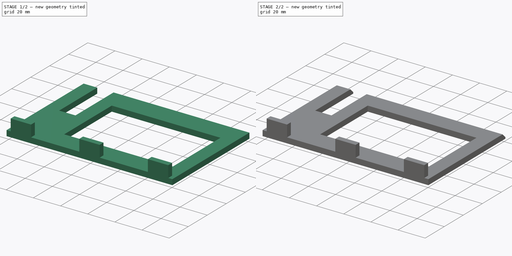
[diagram: build sequence overview — one tinted view per stage of 2, left to right]
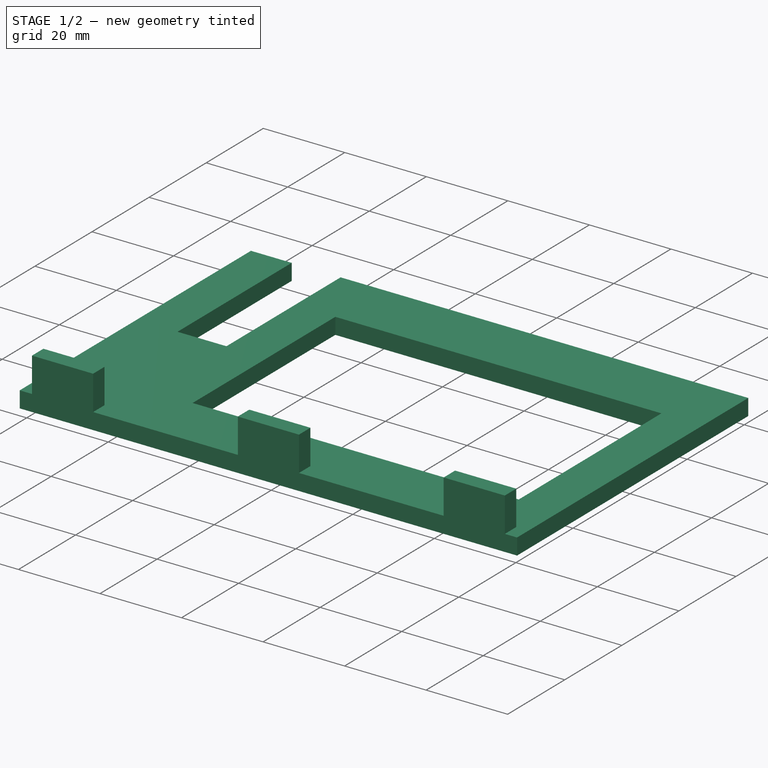
[diagram: stage 1 of 2 — iso view after this stage's code; geometry added in this stage tinted green]
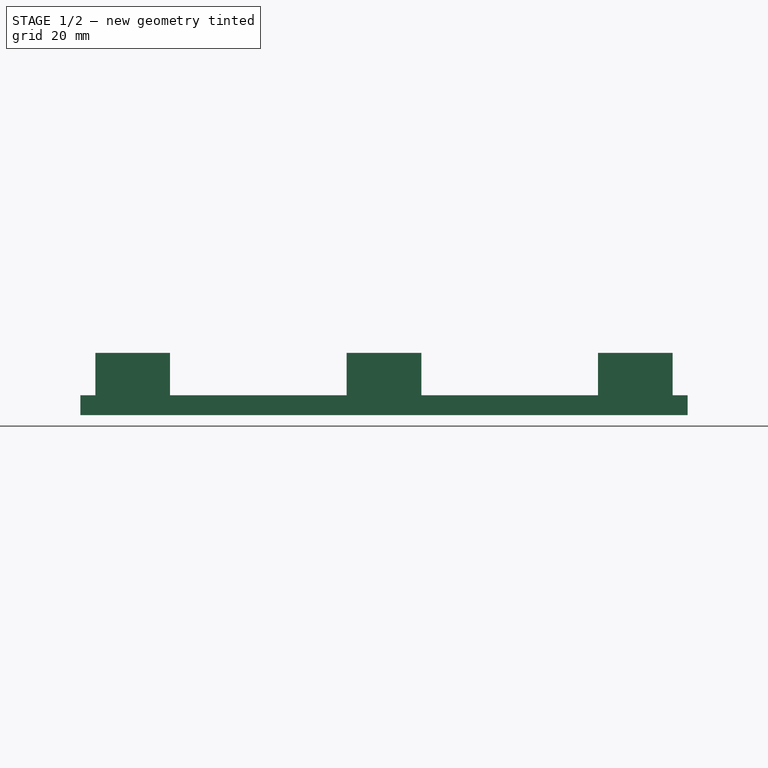
[diagram: stage 1 of 2 — front view after this stage's code; geometry added in this stage tinted green]
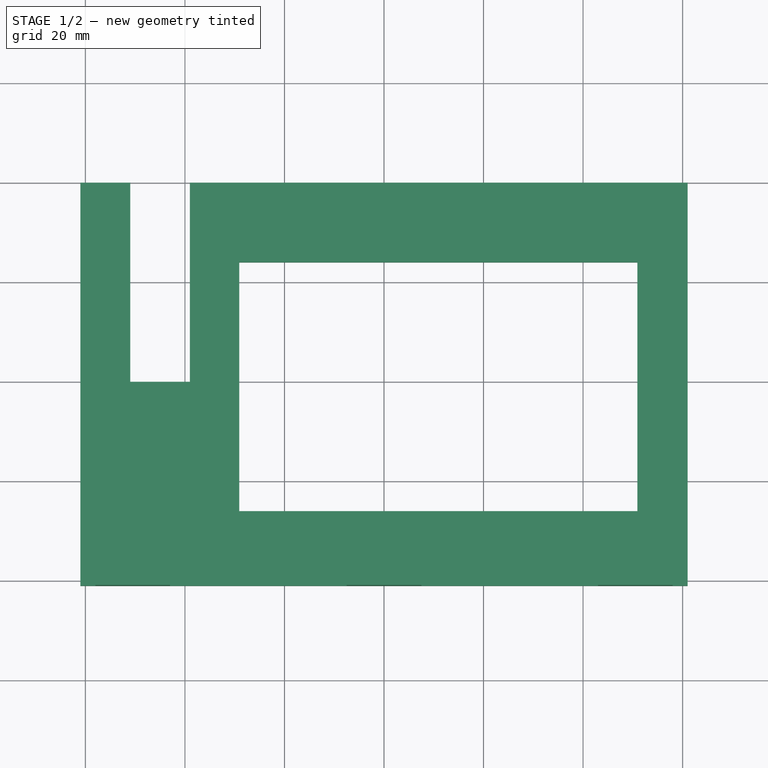
[diagram: stage 1 of 2 — top view after this stage's code; geometry added in this stage tinted green]
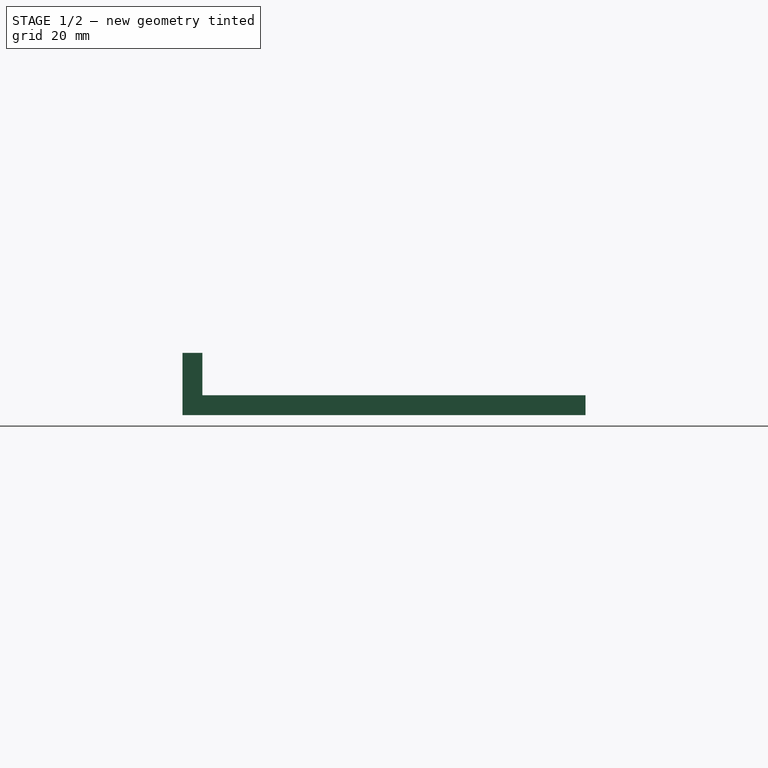
[diagram: stage 1 of 2 — right view after this stage's code; geometry added in this stage tinted green]
FCSTD DOCUMENT  (FreeCAD 0.15R4671 (Git))
Label: electronics_support
License: All rights reserved
LicenseURL: http://en.wikipedia.org/wiki/All_rights_reserved
objects: Sketcher::SketchObject×2, PartDesign::Pad×2, Part::MultiFuse×1, Part::Chamfer×1
note: 8 computed .brp shape members not serialized (recipe doc carries the construction recipe); baked Part::Feature solids carry a one-line shape summary decoded from their .brp

FEATURE [Sketcher::SketchObject] Sketch
  sketch-geometry (12):
    g0: LineSegment StartX=61 StartY=40 StartZ=0 EndX=61 EndY=-41 EndZ=0
    g1: LineSegment StartX=61 StartY=-41 StartZ=0 EndX=-61 EndY=-41 EndZ=0
    g2: LineSegment StartX=-61 StartY=-41 StartZ=0 EndX=-61 EndY=40 EndZ=0
    g3: LineSegment StartX=-51 StartY=0 StartZ=0 EndX=-39 EndY=0 EndZ=0
    g4: LineSegment StartX=-39 StartY=0 StartZ=0 EndX=-39 EndY=40 EndZ=0
    g5: LineSegment StartX=-51 StartY=40 StartZ=0 EndX=-51 EndY=0 EndZ=0
    g6: LineSegment StartX=-61 StartY=40 StartZ=0 EndX=-51 EndY=40 EndZ=0
    g7: LineSegment StartX=-39 StartY=40 StartZ=0 EndX=61 EndY=40 EndZ=0
    g8: LineSegment StartX=-29.0957 StartY=24 StartZ=0 EndX=50.9043 EndY=24 EndZ=0
    g9: LineSegment StartX=50.9043 StartY=24 StartZ=0 EndX=50.9043 EndY=-26 EndZ=0
    g10: LineSegment StartX=50.9043 StartY=-26 StartZ=0 EndX=-29.0957 EndY=-26 EndZ=0
    g11: LineSegment StartX=-29.0957 StartY=-26 StartZ=0 EndX=-29.0957 EndY=24 EndZ=0
  constraints (34):
    c: Coincident(g0,g1)
    c: Coincident(g1,g2)
    c: Horizontal(g1)
    c: Vertical(g0)
    c: Vertical(g2)
    c: DistanceY(g-1,g0) = 40
    c: DistanceY(g0) = -81
    c: Symmetric(g2,g0,g-2)
    c: DistanceX(g1) = -122
    c: Coincident(g3,g4)
    c: Coincident(g5,g3)
    c: Horizontal(g3)
    c: Vertical(g4)
    c: Vertical(g5)
    c: Coincident(g6,g2)
    c: Coincident(g6,g5)
    c: Horizontal(g6)
    c: Coincident(g7,g4)
    c: Coincident(g7,g0)
    c: Horizontal(g7)
    c: Coincident(g8,g9)
    c: Coincident(g9,g10)
    c: Coincident(g10,g11)
    c: Coincident(g11,g8)
    c: Horizontal(g8)
    c: Horizontal(g10)
    c: Vertical(g9)
    c: Vertical(g11)
    c: DistanceY(g5) = -40
    c: DistanceX(g3) = 12
    c: DistanceX(g10) = -80
    c: DistanceY(g9,g0) = -15
    c: DistanceY(g11) = 50
    c: DistanceX(g6) = 10
FEATURE [PartDesign::Pad] Pad
  Length = 4
  Length2 = 100
  Sketch = -> Sketch
  Type = 0
FEATURE [Sketcher::SketchObject] Sketch001
  Placement = pos=(0,0,0.5) rot=(0,0,1;0rad)
  sketch-geometry (12):
    g0: LineSegment StartX=-58 StartY=-37 StartZ=0 EndX=-43 EndY=-37 EndZ=0
    g1: LineSegment StartX=-43 StartY=-37 StartZ=0 EndX=-43 EndY=-41 EndZ=0
    g2: LineSegment StartX=-43 StartY=-41 StartZ=0 EndX=-58 EndY=-41 EndZ=0
    g3: LineSegment StartX=-58 StartY=-41 StartZ=0 EndX=-58 EndY=-37 EndZ=0
    g4: LineSegment StartX=58 StartY=-37 StartZ=0 EndX=43 EndY=-37 EndZ=0
    g5: LineSegment StartX=43 StartY=-37 StartZ=0 EndX=43 EndY=-41 EndZ=0
    g6: LineSegment StartX=43 StartY=-41 StartZ=0 EndX=58 EndY=-41 EndZ=0
    g7: LineSegment StartX=58 StartY=-41 StartZ=0 EndX=58 EndY=-37 EndZ=0
    g8: LineSegment StartX=-7.5 StartY=-37 StartZ=0 EndX=7.5 EndY=-37 EndZ=0
    g9: LineSegment StartX=7.5 StartY=-37 StartZ=0 EndX=7.5 EndY=-41 EndZ=0
    g10: LineSegment StartX=7.5 StartY=-41 StartZ=0 EndX=-7.5 EndY=-41 EndZ=0
    g11: LineSegment StartX=-7.5 StartY=-41 StartZ=0 EndX=-7.5 EndY=-37 EndZ=0
  constraints (36):
    c: Coincident(g0,g1)
    c: Coincident(g1,g2)
    c: Coincident(g2,g3)
    c: Coincident(g3,g0)
    c: Horizontal(g0)
    c: Horizontal(g2)
    c: Vertical(g1)
    c: Vertical(g3)
    c: Coincident(g4,g5)
    c: Coincident(g5,g6)
    c: Coincident(g6,g7)
    c: Coincident(g7,g4)
    c: Horizontal(g4)
    c: Horizontal(g6)
    c: Vertical(g5)
    c: Vertical(g7)
    c: DistanceY(g5) = -4
    c: DistanceY(g1) = -4
    c: DistanceY(g-1,g1) = -41
    c: DistanceX(g-1,g0) = -58
    c: DistanceX(g-1,g4) = 58
    c: DistanceX(g0) = 15
    c: DistanceX(g4) = -15
    c: Coincident(g8,g9)
    c: Coincident(g9,g10)
    c: Coincident(g10,g11)
    c: Coincident(g11,g8)
    c: Horizontal(g8)
    c: Horizontal(g10)
    c: Vertical(g9)
    c: Vertical(g11)
    c: Symmetric(g8,g8,g-2)
    c: DistanceX(g8) = 15
    c: DistanceY(g11) = 4
    c: DistanceY(g-1,g9) = -41
    c: DistanceY(g-1,g6) = -41
FEATURE [PartDesign::Pad] Pad001
  Length = 12
  Length2 = 100
  Placement = pos=(0,0,0.5) rot=(0,0,1;0rad)
  Sketch = -> Sketch001
  Type = 0
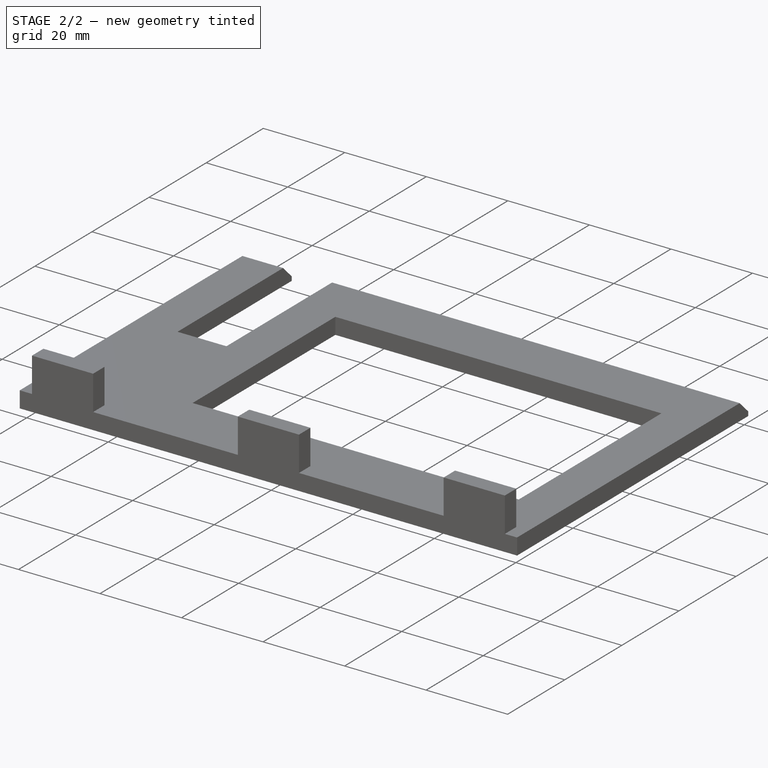
[diagram: stage 2 of 2 — iso view after this stage's code; geometry added in this stage tinted green]
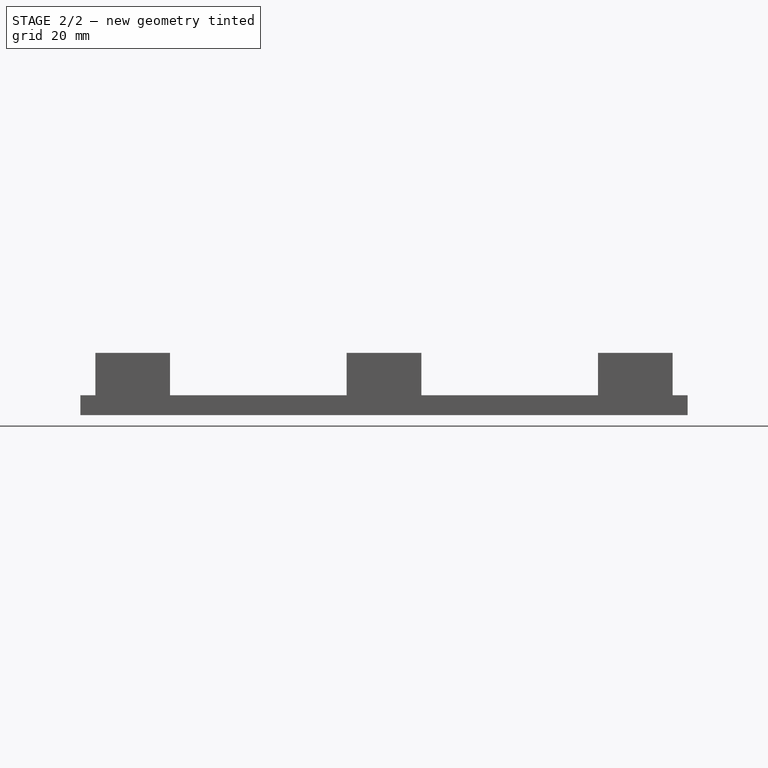
[diagram: stage 2 of 2 — front view after this stage's code; geometry added in this stage tinted green]
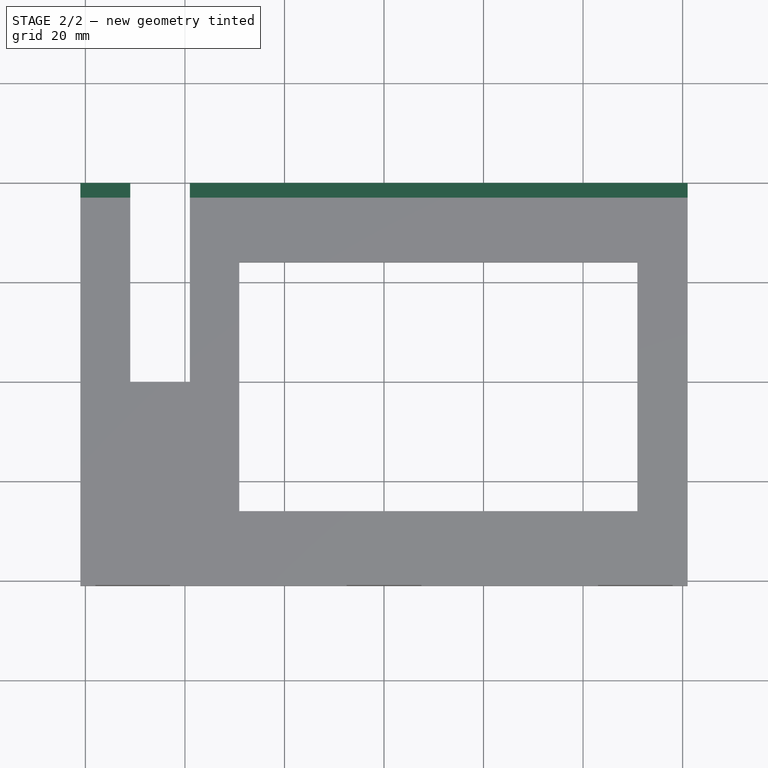
[diagram: stage 2 of 2 — top view after this stage's code; geometry added in this stage tinted green]
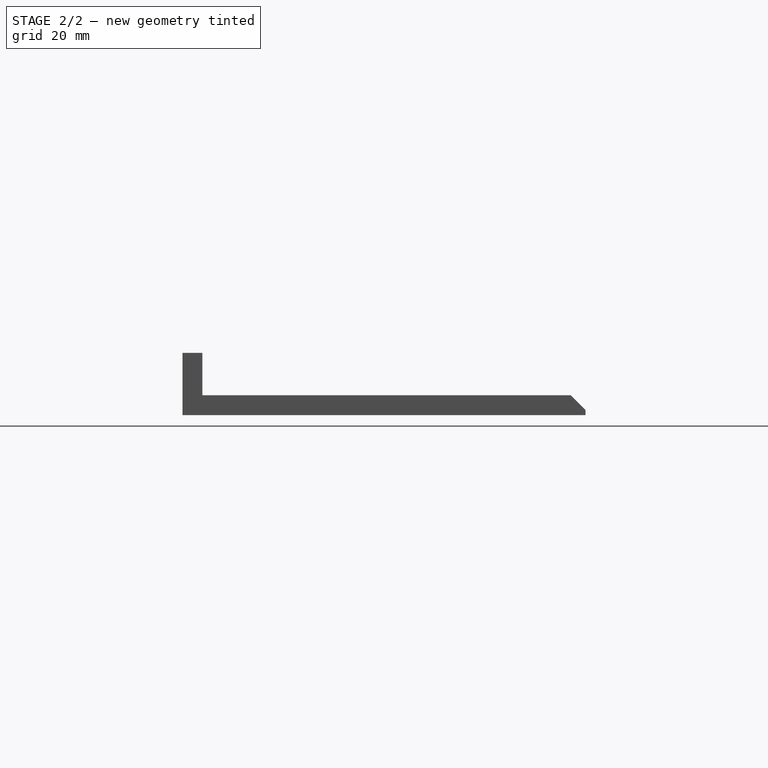
[diagram: stage 2 of 2 — right view after this stage's code; geometry added in this stage tinted green]
FEATURE [Part::MultiFuse] Fusion
  Shapes = -> [Pad,Pad001]
FEATURE [Part::Chamfer] Chamfer
  Base = -> Fusion
  Edges = 2 edges r=3: [Edge7,Edge35]
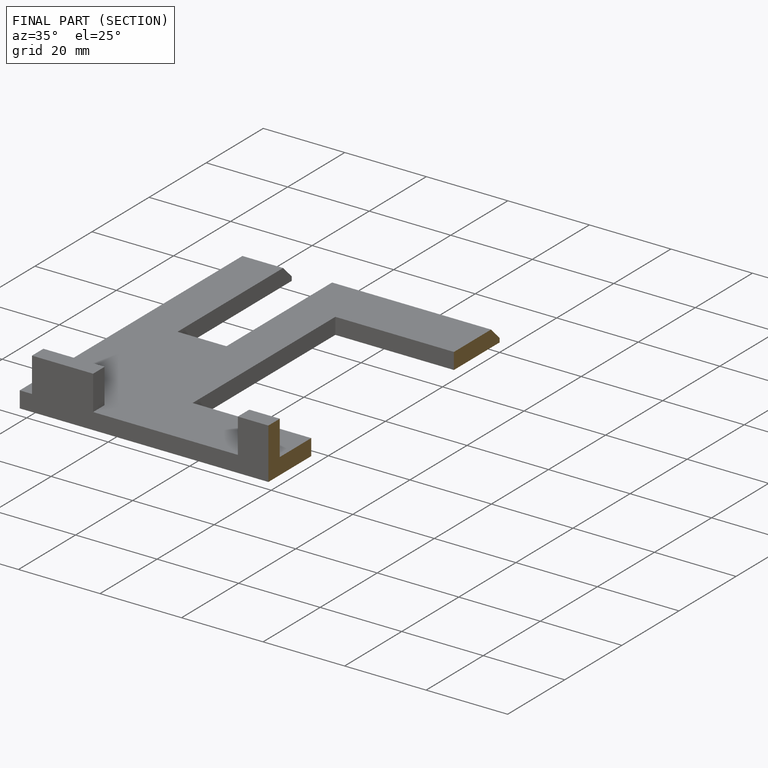
[diagram: finished part — half-section view (interior)]
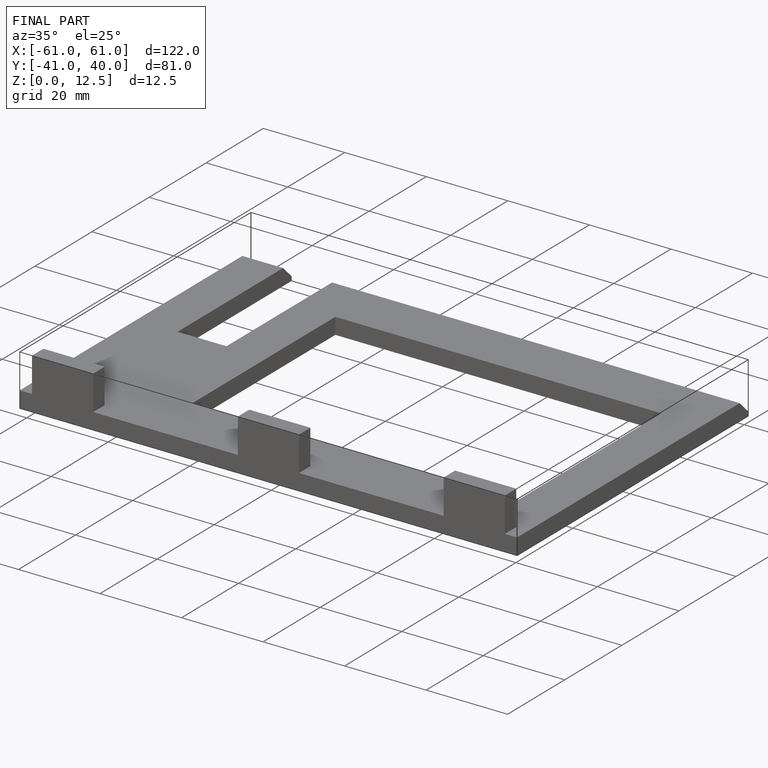
[diagram: finished part — iso view with bounding-box wireframe]
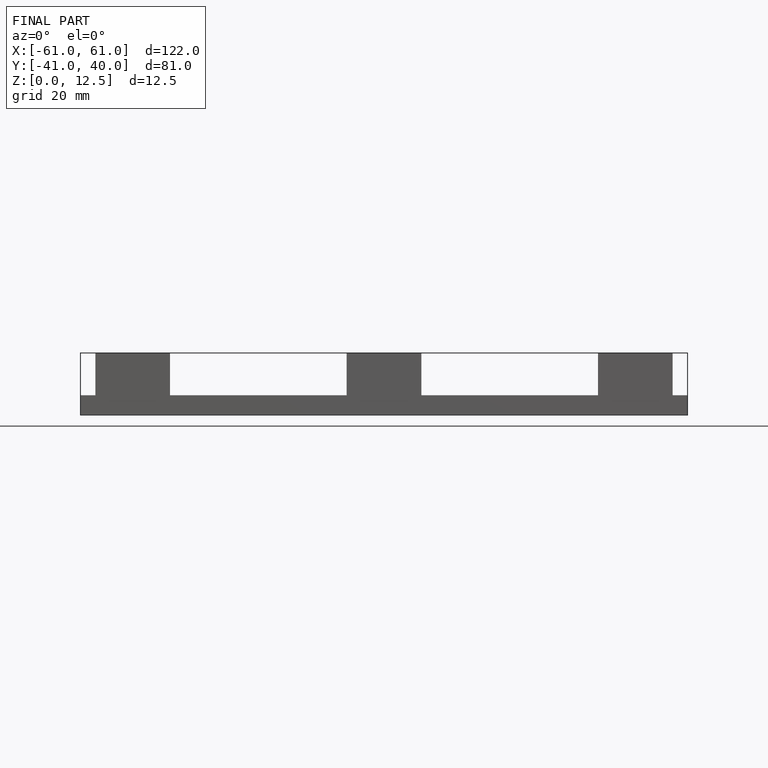
[diagram: finished part — front view with bounding-box wireframe]
